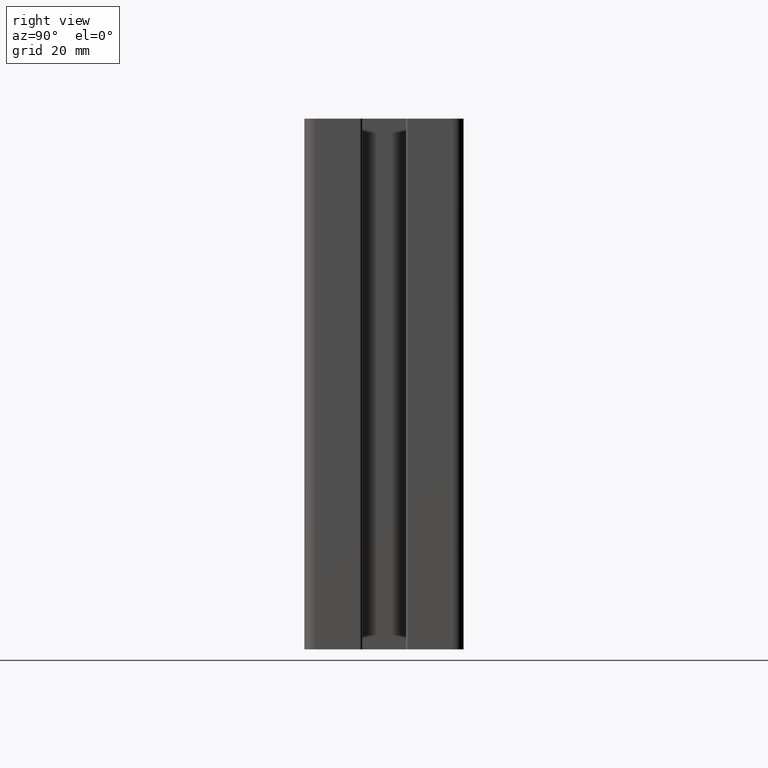
[diagram: clean part render]
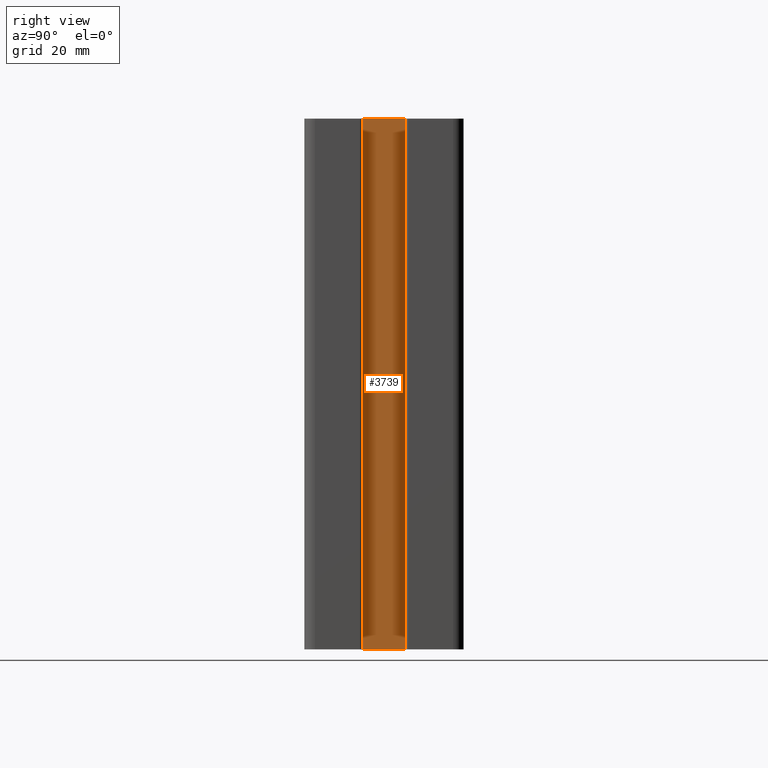
[diagram: same view with one face highlighted and labeled with its STEP entity id]
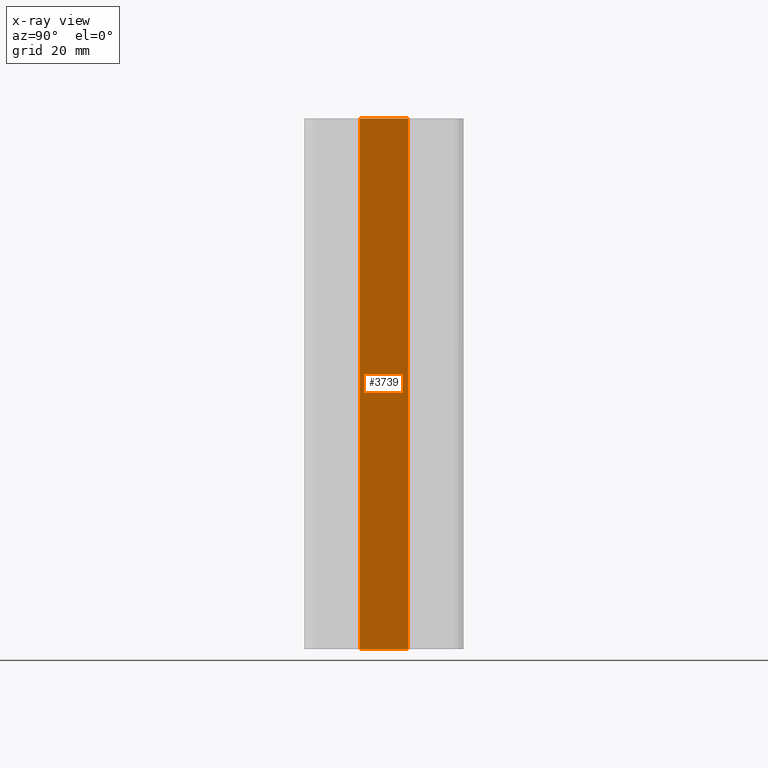
[diagram: x-ray of the same camera — body ghosted, the highlighted face saturated]
A machine part, right view. The second image highlights one B-rep face of the part: STEP entity #3739.
The next image is the same camera in x-ray: the body ghosted, the highlighted face saturated — about 0% of this face is hidden behind the body in this view.
In plain terms, the highlighted planar face has unit normal (-1, 0, 0).
Its self-contained STEP definition (entity closure, byte-faithful):
#302=FACE_OUTER_BOUND('',#491,.T.);
#491=EDGE_LOOP('',(#2728,#2729,#2730,#2731));
#812=LINE('',#5712,#1244);
#813=LINE('',#5715,#1245);
#814=LINE('',#5717,#1246);
#815=LINE('',#5718,#1247);
#1244=VECTOR('',#4608,100.);
#1245=VECTOR('',#4611,9.05503814998694);
#1246=VECTOR('',#4612,9.05503814998694);
#1247=VECTOR('',#4613,100.);
#1652=VERTEX_POINT('',#5708);
#1653=VERTEX_POINT('',#5710);
#1654=VERTEX_POINT('',#5714);
#1655=VERTEX_POINT('',#5716);
#2098=EDGE_CURVE('',#1653,#1652,#812,.T.);
#2099=EDGE_CURVE('',#1652,#1654,#813,.T.);
#2100=EDGE_CURVE('',#1655,#1653,#814,.T.);
#2101=EDGE_CURVE('',#1655,#1654,#815,.T.);
#2728=ORIENTED_EDGE('',*,*,#2099,.F.);
#2729=ORIENTED_EDGE('',*,*,#2098,.F.);
#2730=ORIENTED_EDGE('',*,*,#2100,.F.);
#2731=ORIENTED_EDGE('',*,*,#2101,.T.);
#3589=PLANE('',#3978);
#3739=ADVANCED_FACE('',(#302),#3589,.F.);
#3978=AXIS2_PLACEMENT_3D('',#5713,#4609,#4610);
#4608=DIRECTION('',(0.,0.,1.));
#4609=DIRECTION('center_axis',(-1.,0.,0.));
#4610=DIRECTION('ref_axis',(0.,0.,1.));
#4611=DIRECTION('',(0.,1.,0.));
#4612=DIRECTION('',(0.,-1.,0.));
#4613=DIRECTION('',(0.,0.,1.));
#5708=CARTESIAN_POINT('',(35.8,-4.527,100.));
#5710=CARTESIAN_POINT('',(35.8,-4.527,0.));
#5712=CARTESIAN_POINT('',(35.8,-4.527,0.));
#5713=CARTESIAN_POINT('Origin',(35.8,-4.527,0.));
#5714=CARTESIAN_POINT('',(35.8,4.52803814998694,100.));
#5715=CARTESIAN_POINT('',(35.8,-2.26349833500002,100.));
#5716=CARTESIAN_POINT('',(35.8,4.52803814998694,0.));
#5717=CARTESIAN_POINT('',(35.8,-2.26349833500002,0.));
#5718=CARTESIAN_POINT('',(35.8,4.52803814998694,0.));